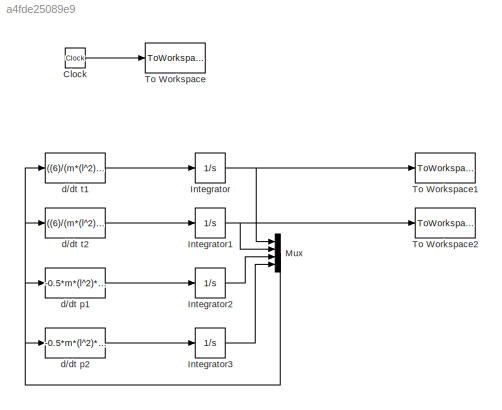
MODEL slx_a4fde25089e9
KIND model
CONFIG AbsTol = auto
CONFIG EnableMultiTasking = off
CONFIG FixedStep = auto
CONFIG MaxStep = auto
CONFIG MinStep = auto
CONFIG RelTol = 1e-8
CONFIG SampleTimeConstraint = Unconstrained
CONFIG Solver = VariableStepAuto
CONFIG SolverName = VariableStepAuto
CONFIG StartTime = 0.0
CONFIG StopTime = ttotal
BLOCK [Clock] Clock
BLOCK [Integrator] Integrator
  InitialCondition = t10
  Ports = [1, 1]
BLOCK [Integrator] Integrator1
  InitialCondition = t20
  Ports = [1, 1]
BLOCK [Integrator] Integrator2
  InitialCondition = p10
  Ports = [1, 1]
BLOCK [Integrator] Integrator3
  InitialCondition = p20
  Ports = [1, 1]
BLOCK [Mux] Mux
  DisplayOption = bar
  Ports = [4, 1]
BLOCK [ToWorkspace] To Workspace
  FixptAsFi = on
  MaxDataPoints = inf
  Ports = [1]
  SampleTime = -1
  Save2DSignal = 3-D array (concatenate along third dimension)
  VariableName = t
BLOCK [ToWorkspace] To Workspace1
  FixptAsFi = on
  MaxDataPoints = inf
  Ports = [1]
  SampleTime = -1
  Save2DSignal = 3-D array (concatenate along third dimension)
  VariableName = t1
BLOCK [ToWorkspace] To Workspace2
  FixptAsFi = on
  MaxDataPoints = inf
  Ports = [1]
  SampleTime = -1
  Save2DSignal = 3-D array (concatenate along third dimension)
  VariableName = t2
BLOCK [Fcn] d//dt p1
  Expr = -0.5*m*(l^2)*(((((6)/(m*(l^2)))*((2*u(3)-3*cos(u(1)-u(2))*u(4))/(16-9*(cos(u(1)-u(2)))^2)))*(((6)/(m*(l^2)))*((8*u(4)-3*cos(u(1)-u(2))*u(3))/(16-9*(cos(u(1)-u(2)))^2))))*sin(u(1)-u(2)) +3*(g/l)*sin(u(1)))
BLOCK [Fcn] d//dt p2
  Expr = -0.5*m*(l^2)*(-((((6)/(m*(l^2)))*((2*u(3)-3*cos(u(1)-u(2))*u(4))/(16-9*(cos(u(1)-u(2)))^2)))*(((6)/(m*(l^2)))*((8*u(4)-3*cos(u(1)-u(2))*u(3))/(16-9*(cos(u(1)-u(2)))^2))))*sin(u(1)-u(2)) +(g/l)*sin(u(2)))
BLOCK [Fcn] d//dt t1
  Expr = ((6)/(m*(l^2)))*((2*u(3)-3*cos(u(1)-u(2))*u(4))/(16-9*(cos(u(1)-u(2)))^2))
BLOCK [Fcn] d//dt t2
  Expr = ((6)/(m*(l^2)))*((8*u(4)-3*cos(u(1)-u(2))*u(3))/(16-9*(cos(u(1)-u(2)))^2))
LINE Clock:1 -> To Workspace:1
NET Integrator1:1 -> Mux:2, To Workspace2:1
LINE Integrator2:1 -> Mux:3
LINE Integrator3:1 -> Mux:4
NET Integrator:1 -> Mux:1, To Workspace1:1
NET Mux:1 -> d//dt p1:1, d//dt p2:1, d//dt t1:1, d//dt t2:1
LINE d//dt p1:1 -> Integrator2:1
LINE d//dt p2:1 -> Integrator3:1
LINE d//dt t1:1 -> Integrator:1
LINE d//dt t2:1 -> Integrator1:1
note: NET lines group one-source signal fan-out (src -> all destinations, sorted); 1:1 wires keep LINE
